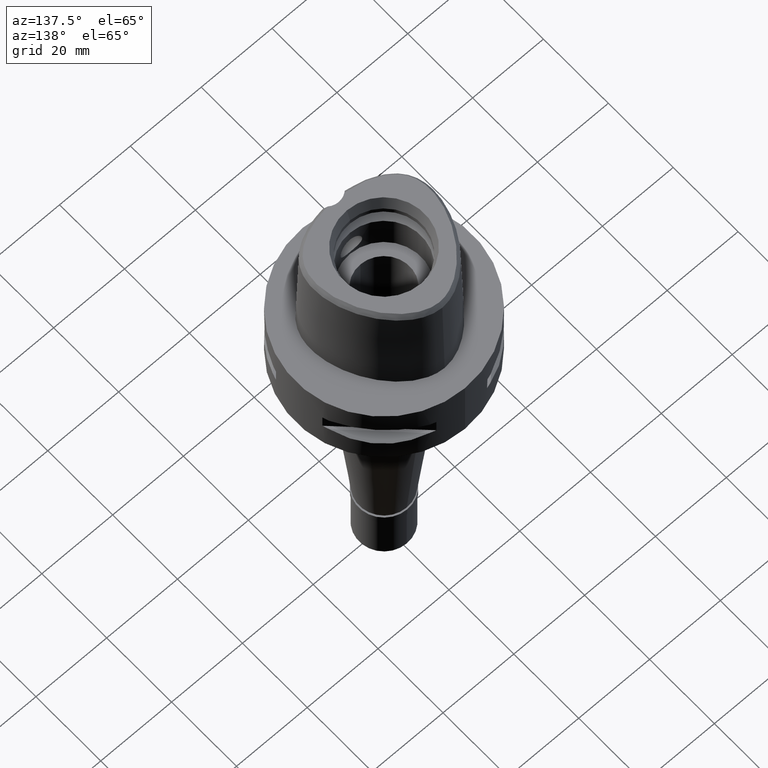
[diagram: clean part render]
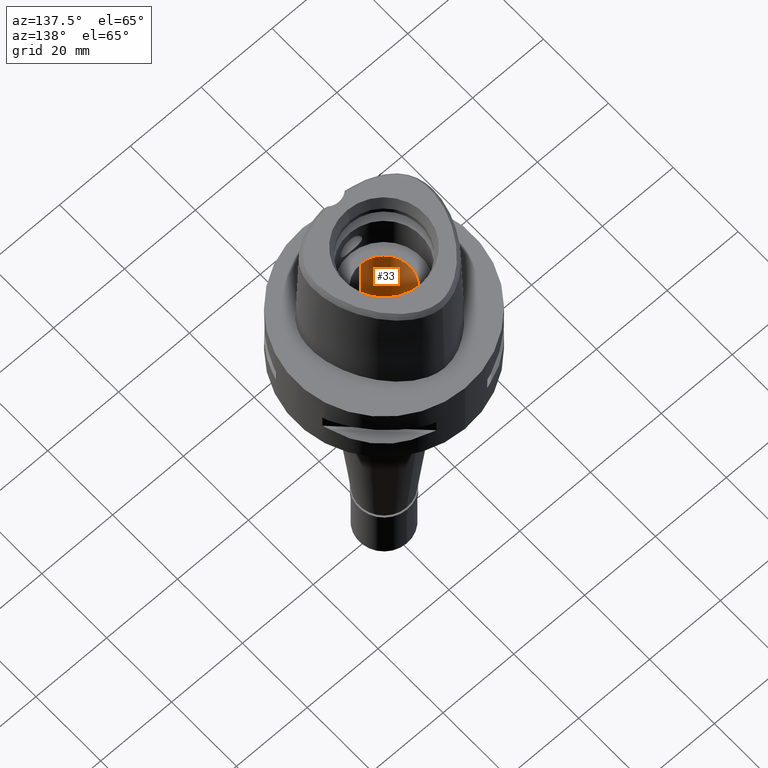
[diagram: same view with one face highlighted and labeled with its STEP entity id]
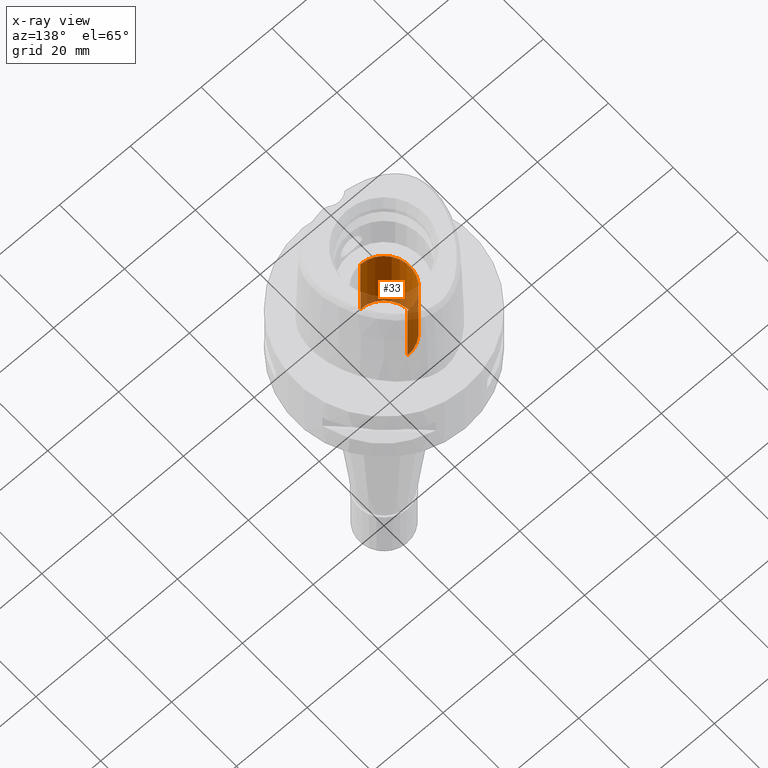
[diagram: x-ray of the same camera — body ghosted, the highlighted face saturated]
A machine part, auxiliary view. The second image highlights one B-rep face of the part: STEP entity #33.
The next image is the same camera in x-ray: the body ghosted, the highlighted face saturated — about 36% of this face is hidden behind the body in this view.
In plain terms, the highlighted cylindrical surface (edge-blend (fillet) strip) has radius 7.25 mm, axis along (0, 0, -1).
Its self-contained STEP definition (entity closure, byte-faithful):
#33 = ADVANCED_FACE ( 'NONE', ( #2872 ), #1737, .F. ) ;
#116 = DIRECTION ( 'NONE',  ( 0.0000000000000000000, -1.000000000000000000, 0.0000000000000000000 ) ) ;
#200 = DIRECTION ( 'NONE',  ( 0.0000000000000000000, 0.0000000000000000000, 1.000000000000000000 ) ) ;
#292 = EDGE_CURVE ( 'NONE', #555, #1386, #1515, .T. ) ;
#296 = DIRECTION ( 'NONE',  ( 0.0000000000000000000, 0.0000000000000000000, -1.000000000000000000 ) ) ;
#340 = ORIENTED_EDGE ( 'NONE', *, *, #3967, .T. ) ;
#373 = VECTOR ( 'NONE', #477, 1000.000000000000000 ) ;
#477 = DIRECTION ( 'NONE',  ( 0.0000000000000000000, 0.0000000000000000000, 1.000000000000000000 ) ) ;
#505 = CIRCLE ( 'NONE', #966, 7.250000000000000000 ) ;
#555 = VERTEX_POINT ( 'NONE', #4367 ) ;
#582 = ORIENTED_EDGE ( 'NONE', *, *, #4029, .T. ) ;
#656 = EDGE_CURVE ( 'NONE', #2753, #4685, #505, .T. ) ;
#966 = AXIS2_PLACEMENT_3D ( 'NONE', #3803, #3543, #116 ) ;
#1376 = DIRECTION ( 'NONE',  ( 0.0000000000000000000, 1.000000000000000000, 0.0000000000000000000 ) ) ;
#1386 = VERTEX_POINT ( 'NONE', #3001 ) ;
#1409 = DIRECTION ( 'NONE',  ( 0.0000000000000000000, -1.000000000000000000, 0.0000000000000000000 ) ) ;
#1515 = CIRCLE ( 'NONE', #3595, 7.250000000000000000 ) ;
#1737 = CYLINDRICAL_SURFACE ( 'NONE', #2049, 7.250000000000000000 ) ;
#2049 = AXIS2_PLACEMENT_3D ( 'NONE', #4625, #296, #1409 ) ;
#2700 = CARTESIAN_POINT ( 'NONE',  ( 0.0000000000000000000, 7.250000000000000000, -12.00000000000000000 ) ) ;
#2721 = LINE ( 'NONE', #3097, #3699 ) ;
#2747 = CARTESIAN_POINT ( 'NONE',  ( 0.0000000000000000000, 1.286491462503999938E-14, 10.00000000000000000 ) ) ;
#2753 = VERTEX_POINT ( 'NONE', #3831 ) ;
#2872 = FACE_OUTER_BOUND ( 'NONE', #3598, .T. ) ;
#2945 = CARTESIAN_POINT ( 'NONE',  ( 0.0000000000000000000, 7.250000000000000000, -12.00000000000000000 ) ) ;
#3001 = CARTESIAN_POINT ( 'NONE',  ( 0.0000000000000000000, -7.250000000000000000, 10.00000000000000000 ) ) ;
#3097 = CARTESIAN_POINT ( 'NONE',  ( 0.0000000000000000000, -7.250000000000000000, 10.00000000000000000 ) ) ;
#3445 = LINE ( 'NONE', #2700, #373 ) ;
#3543 = DIRECTION ( 'NONE',  ( 0.0000000000000000000, 0.0000000000000000000, -1.000000000000000000 ) ) ;
#3558 = ORIENTED_EDGE ( 'NONE', *, *, #656, .T. ) ;
#3595 = AXIS2_PLACEMENT_3D ( 'NONE', #2747, #200, #1376 ) ;
#3598 = EDGE_LOOP ( 'NONE', ( #3558, #340, #4297, #582 ) ) ;
#3699 = VECTOR ( 'NONE', #3890, 1000.000000000000000 ) ;
#3803 = CARTESIAN_POINT ( 'NONE',  ( 0.0000000000000000000, 1.286491462503999938E-14, -12.00000000000000000 ) ) ;
#3831 = CARTESIAN_POINT ( 'NONE',  ( 0.0000000000000000000, -7.250000000000000000, -12.00000000000000000 ) ) ;
#3890 = DIRECTION ( 'NONE',  ( 0.0000000000000000000, 0.0000000000000000000, -1.000000000000000000 ) ) ;
#3967 = EDGE_CURVE ( 'NONE', #4685, #555, #3445, .T. ) ;
#4029 = EDGE_CURVE ( 'NONE', #1386, #2753, #2721, .T. ) ;
#4297 = ORIENTED_EDGE ( 'NONE', *, *, #292, .T. ) ;
#4367 = CARTESIAN_POINT ( 'NONE',  ( 0.0000000000000000000, 7.250000000000000000, 10.00000000000000000 ) ) ;
#4625 = CARTESIAN_POINT ( 'NONE',  ( 0.0000000000000000000, 1.286491462503999938E-14, 5.049999999999999822 ) ) ;
#4685 = VERTEX_POINT ( 'NONE', #2945 ) ;